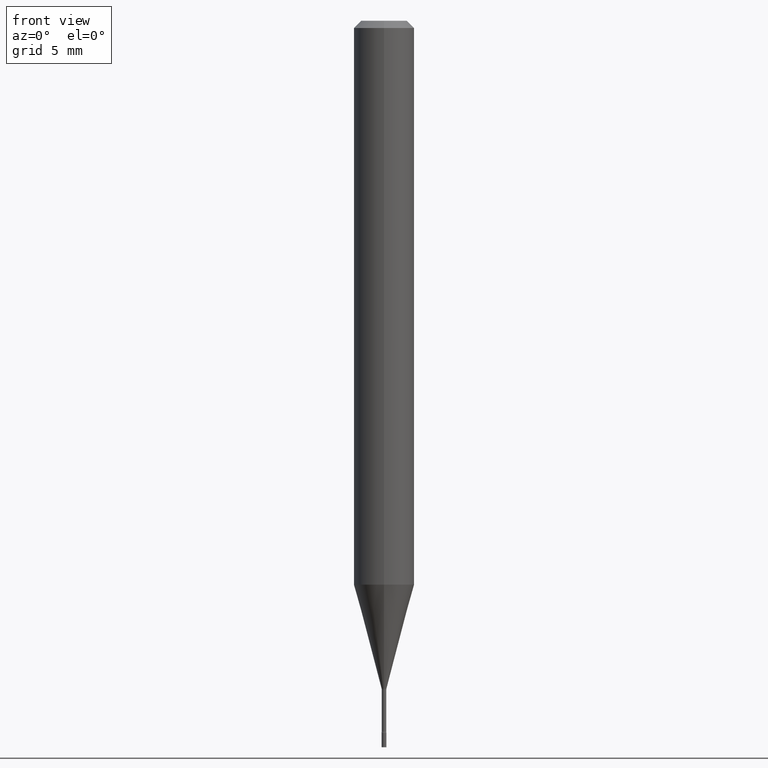
[diagram: clean part render]
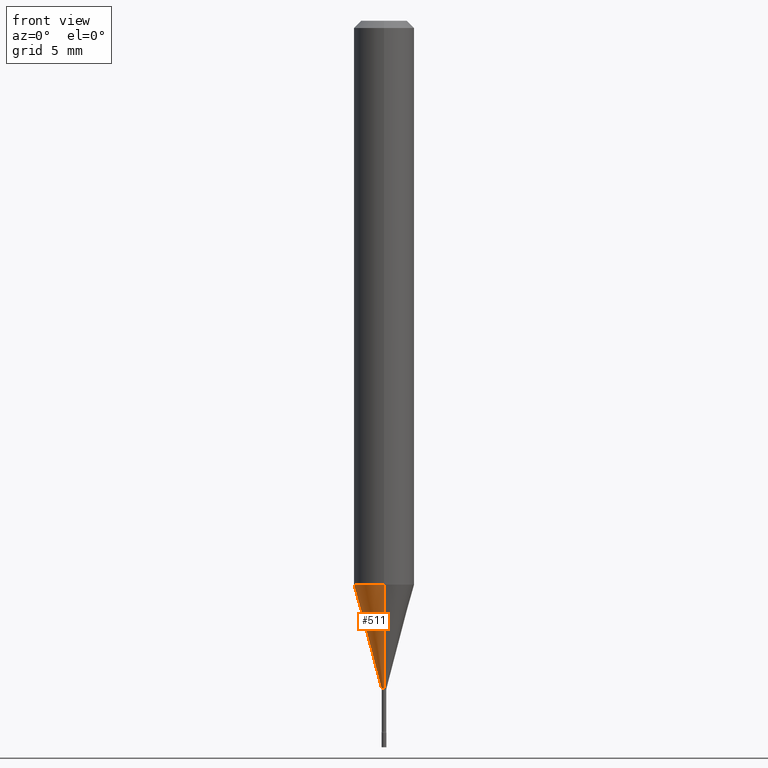
[diagram: same view with one face highlighted and labeled with its STEP entity id]
A machine part, front view. The second image highlights one B-rep face of the part: STEP entity #511.
In plain terms, the highlighted conical surface has half-angle 15 deg.
Its self-contained STEP definition (entity closure, byte-faithful):
#18 = DIRECTION ( 'NONE',  ( -1.807323732225325801E-15, -0.2588190451025175753, 0.9659258262890690894 ) ) ;
#22 = CIRCLE ( 'NONE', #65, 0.06250000000000000000 ) ;
#23 = VECTOR ( 'NONE', #179, 39.37007874015748143 ) ;
#25 = ORIENTED_EDGE ( 'NONE', *, *, #85, .T. ) ;
#27 = EDGE_CURVE ( 'NONE', #461, #59, #22, .T. ) ;
#40 = DIRECTION ( 'NONE',  ( -2.443548350273979842E-29, 3.494231541013484415E-15, 1.000000000000000000 ) ) ;
#45 = CARTESIAN_POINT ( 'NONE',  ( 2.405581959609744668E-16, 0.005211112605659107451, -1.378092501787273605 ) ) ;
#59 = VERTEX_POINT ( 'NONE', #160 ) ;
#65 = AXIS2_PLACEMENT_3D ( 'NONE', #232, #197, #350 ) ;
#85 = EDGE_CURVE ( 'NONE', #223, #333, #448, .T. ) ;
#113 = AXIS2_PLACEMENT_3D ( 'NONE', #195, #235, #193 ) ;
#115 = ORIENTED_EDGE ( 'NONE', *, *, #354, .F. ) ;
#141 = CARTESIAN_POINT ( 'NONE',  ( -3.638900483453792750E-17, -0.005211112605668736901, -1.378092501787273605 ) ) ;
#149 = CARTESIAN_POINT ( 'NONE',  ( 4.440892098500909166E-16, 0.06249999999999592687, -1.164287463322519756 ) ) ;
#160 = CARTESIAN_POINT ( 'NONE',  ( -4.364351673553632704E-16, -0.06250000000000409395, -1.164287463322519089 ) ) ;
#174 = CONICAL_SURFACE ( 'NONE', #113, 0.005211112605663922176, 0.2617993877991496299 ) ;
#179 = DIRECTION ( 'NONE',  ( 1.839019923739595977E-15, 0.2588190451025243477, 0.9659258262890673130 ) ) ;
#193 = DIRECTION ( 'NONE',  ( -6.982962677686266711E-15, -1.000000000000000000, 0.000000000000000000 ) ) ;
#195 = CARTESIAN_POINT ( 'NONE',  ( 3.367435659267233569E-29, -4.815374286179273696E-15, -1.378092501787273605 ) ) ;
#197 = DIRECTION ( 'NONE',  ( -2.443548350273979842E-29, 3.494231541013484415E-15, 1.000000000000000000 ) ) ;
#223 = VERTEX_POINT ( 'NONE', #45 ) ;
#227 = ORIENTED_EDGE ( 'NONE', *, *, #402, .T. ) ;
#232 = CARTESIAN_POINT ( 'NONE',  ( 2.844992710246418871E-29, -4.068289977148127894E-15, -1.164287463322519312 ) ) ;
#235 = DIRECTION ( 'NONE',  ( -2.443548350273979842E-29, 3.494231541013484415E-15, 1.000000000000000000 ) ) ;
#254 = VECTOR ( 'NONE', #18, 39.37007874015748854 ) ;
#268 = EDGE_LOOP ( 'NONE', ( #115, #25, #227, #336 ) ) ;
#273 = FACE_OUTER_BOUND ( 'NONE', #268, .T. ) ;
#296 = CARTESIAN_POINT ( 'NONE',  ( 3.702718207185754248E-17, 0.005211112605659107451, -1.378092501787273605 ) ) ;
#329 = LINE ( 'NONE', #296, #23 ) ;
#333 = VERTEX_POINT ( 'NONE', #141 ) ;
#336 = ORIENTED_EDGE ( 'NONE', *, *, #27, .F. ) ;
#347 = CARTESIAN_POINT ( 'NONE',  ( -3.638900483453792750E-17, -0.005211112605668736901, -1.378092501787273605 ) ) ;
#350 = DIRECTION ( 'NONE',  ( -6.982962677686265922E-15, -1.000000000000000000, 4.370956789862821150E-15 ) ) ;
#354 = EDGE_CURVE ( 'NONE', #223, #461, #329, .T. ) ;
#356 = CARTESIAN_POINT ( 'NONE',  ( 3.367435659267233569E-29, -4.815374286179273696E-15, -1.378092501787273605 ) ) ;
#361 = DIRECTION ( 'NONE',  ( -6.982962677686266711E-15, -1.000000000000000000, 0.000000000000000000 ) ) ;
#378 = AXIS2_PLACEMENT_3D ( 'NONE', #356, #40, #361 ) ;
#402 = EDGE_CURVE ( 'NONE', #333, #59, #467, .T. ) ;
#448 = CIRCLE ( 'NONE', #378, 0.005211112605663922176 ) ;
#461 = VERTEX_POINT ( 'NONE', #149 ) ;
#467 = LINE ( 'NONE', #347, #254 ) ;
#511 = ADVANCED_FACE ( 'NONE', ( #273 ), #174, .T. ) ;